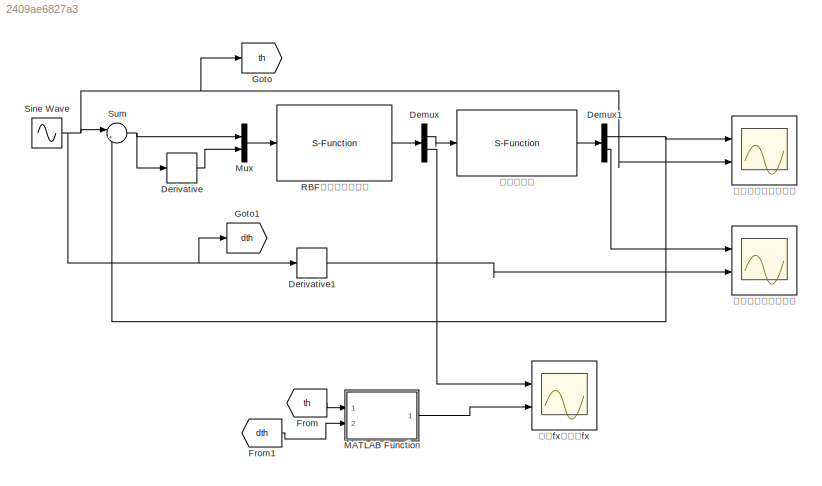
MODEL slx_2409ae6827a3
KIND model
CONFIG AbsTol = auto
CONFIG EnableMultiTasking = on
CONFIG FixedStep = 0.001
CONFIG MaxStep = auto
CONFIG MinStep = auto
CONFIG RelTol = 1e-3
CONFIG SampleTimeConstraint = Unconstrained
CONFIG Solver = ode4
CONFIG SolverName = ode4
CONFIG StartTime = 0
CONFIG StopTime = 10.0
BLOCK [Demux] Demux
  DisplayOption = bar
  Outputs = 2
  Ports = [1, 2]
BLOCK [Demux] Demux1
  DisplayOption = bar
  Outputs = 2
  Ports = [1, 2]
BLOCK [Derivative] Derivative
BLOCK [Derivative] Derivative1
BLOCK [From] From
  GotoTag = th
BLOCK [From] From1
  GotoTag = dth
BLOCK [Goto] Goto
  GotoTag = th
BLOCK [Goto] Goto1
  GotoTag = dth
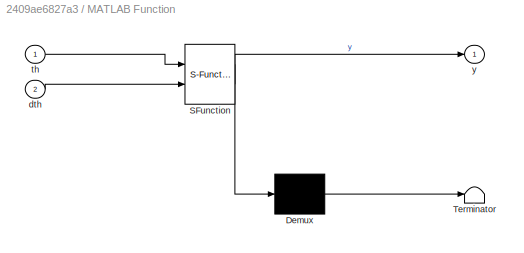
BLOCK [SubSystem] MATLAB Function
  ErrorFcn = Stateflow.Translate.translate
  PermitHierarchicalResolution = ExplicitOnly
  Ports = [2, 1]
  RequestExecContextInheritance = off
  SFBlockType = MATLAB Function
  TreatAsAtomicUnit = on
BLOCK [Demux] MATLAB Function/ Demux 
  Outputs = 1
  Ports = [1, 1]
BLOCK [S-Function] MATLAB Function/ SFunction 
  EnableBusSupport = on
  FunctionName = sf_sfun
  PortCounts = [2 2]
  Ports = [2, 2]
  SFcnIsStateOwnerBlock = off
  SFunctionDeploymentMode = off
  Tag = Stateflow S-Function 2
BLOCK [Terminator] MATLAB Function/ Terminator 
BLOCK [Inport] MATLAB Function/dth
  IconDisplay = Port number
  Port = 2
BLOCK [Inport] MATLAB Function/th
  IconDisplay = Port number
BLOCK [Outport] MATLAB Function/y
  IconDisplay = Port number
BLOCK [Mux] Mux
  DisplayOption = bar
  Inputs = 2
  Ports = [2, 1]
BLOCK [S-Function] RBF神经网络控制器
  EnableBusSupport = off
  FunctionName = Book4132_Controller
  Ports = [1, 1]
  SFcnIsStateOwnerBlock = off
  SFunctionDeploymentMode = off
BLOCK [Sin] Sine Wave
  Amplitude = 0.1
  Ports = [0, 1]
  SampleTime = 0
BLOCK [Sum] Sum
  IconShape = round
  InputSameDT = off
  Inputs = |+-
  OutDataTypeStr = Inherit: Inherit via internal rule
  Ports = [2, 1]
  SaturateOnIntegerOverflow = off
BLOCK [S-Function] 单级倒立摆
  EnableBusSupport = off
  FunctionName = Book4132_Plant
  Ports = [1, 1]
  SFcnIsStateOwnerBlock = off
  SFunctionDeploymentMode = off
BLOCK [Scope] 期望fx与实际fx
  Floating = off
  NumInputPorts = 2
  Ports = [2]
  ScopeSpecificationString = Simulink.scopes.TimeScopeBlockCfg('CurrentConfiguration', extmgr.ConfigurationSet(extmgr.Configuration('Core','General UI',true,'FigureColor',[1 1 1]),extmgr.Configuration('Core','Source UI',true),extmgr.Configuration('Sources','WiredSimulink',true,'DataLoggingVariableName','ScopeData2'),extmgr.Configuration('Visuals','Time Domain',true,'SerializedDisplays',{struct('MinYLimReal','-10','MaxYLimReal...<+1478ch>
BLOCK [Scope] 期望转角与实际转角
  Floating = off
  NumInputPorts = 2
  Ports = [2]
  ScopeSpecificationString = Simulink.scopes.TimeScopeBlockCfg('CurrentConfiguration', extmgr.ConfigurationSet(extmgr.Configuration('Core','General UI',true,'FigureColor',[1 1 1]),extmgr.Configuration('Core','Source UI',true),extmgr.Configuration('Sources','WiredSimulink',true),extmgr.Configuration('Visuals','Time Domain',true,'SerializedDisplays',{struct('MinYLimReal','-0.12555','MaxYLimReal','0.12995','YLabelReal','','MinYL...<+1527ch>
BLOCK [Scope] 期望转速与实际转速
  Floating = off
  NumInputPorts = 2
  Ports = [2]
  ScopeSpecificationString = Simulink.scopes.TimeScopeBlockCfg('CurrentConfiguration', extmgr.ConfigurationSet(extmgr.Configuration('Core','General UI',true,'FigureColor',[1 1 1]),extmgr.Configuration('Core','Source UI',true),extmgr.Configuration('Sources','WiredSimulink',true,'DataLoggingVariableName','ScopeData1'),extmgr.Configuration('Visuals','Time Domain',true,'SerializedDisplays',{struct('MinYLimReal','-0.12564','MaxYLi...<+1540ch>
NET Demux1:1 -> Sum:2, 期望转角与实际转角:1
LINE Demux1:2 -> 期望转速与实际转速:1
LINE Demux:1 -> 单级倒立摆:1
LINE Demux:2 -> 期望fx与实际fx:1
LINE Derivative1:1 -> 期望转速与实际转速:2
LINE Derivative:1 -> Mux:2
LINE From1:1 -> MATLAB Function:2
LINE From:1 -> MATLAB Function:1
LINE MATLAB Function:1 -> 期望fx与实际fx:2
LINE Mux:1 -> RBF神经网络控制器:1
LINE RBF神经网络控制器:1 -> Demux:1
NET Sine Wave:1 -> Derivative1:1, Goto1:1, Goto:1, Sum:1, 期望转角与实际转角:2
NET Sum:1 -> Derivative:1, Mux:1
LINE 单级倒立摆:1 -> Demux1:1
note: NET lines group one-source signal fan-out (src -> all destinations, sorted); 1:1 wires keep LINE
CHART MATLAB Function states=1 transitions=1
  STATE_LABEL 'eML_blk_kernel()'
  STATE_LABEL 'SCRIPT:\nfunction y = fcn(th, dth)\n%#codegen\ng = 9.8;\nmc = 1;     %小车质量\nm = 0.1;    %摆的质量\nl = 0.5;\nf_up = g*sin(th) - m*l*dth^2*cos(th)*sin(th)/(mc+m);\nf_down = l *(4/3 - m*(cos(th)^2)/(mc+m));\nf = f_up / f_down;\ny = f;'
